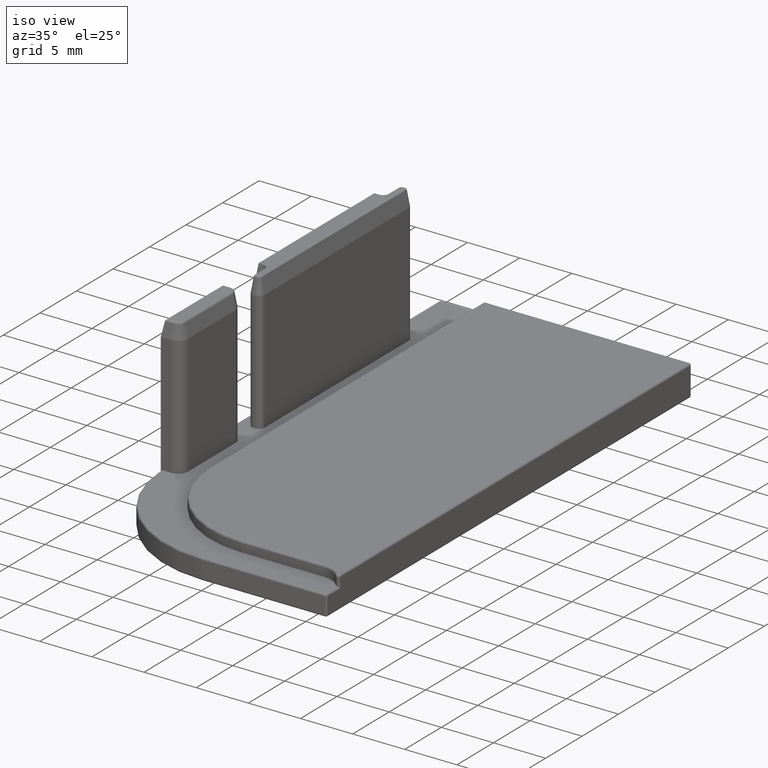
[diagram: clean part render]
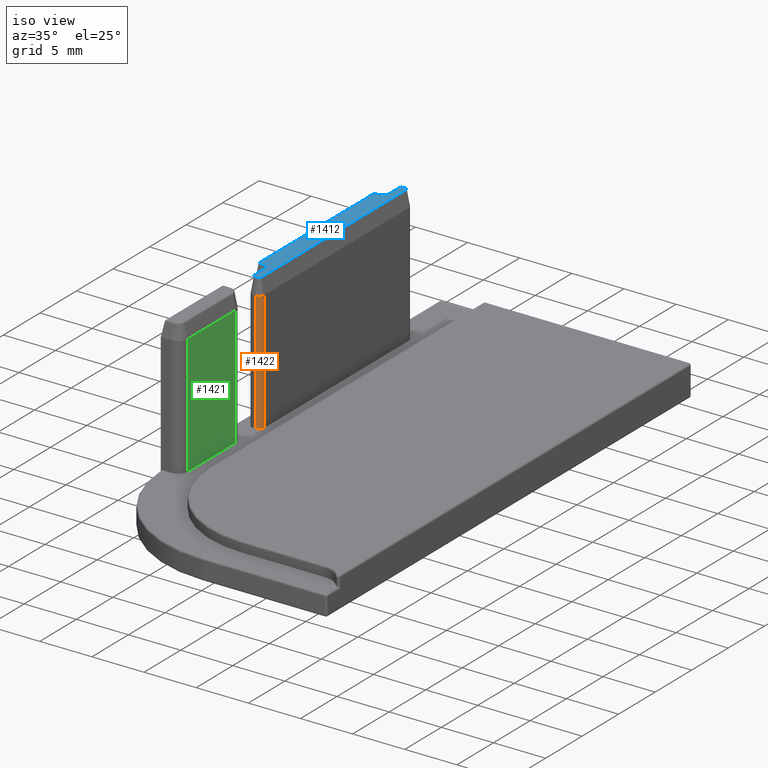
[diagram: same view with three faces highlighted in distinct colors, each labeled with its STEP entity id]
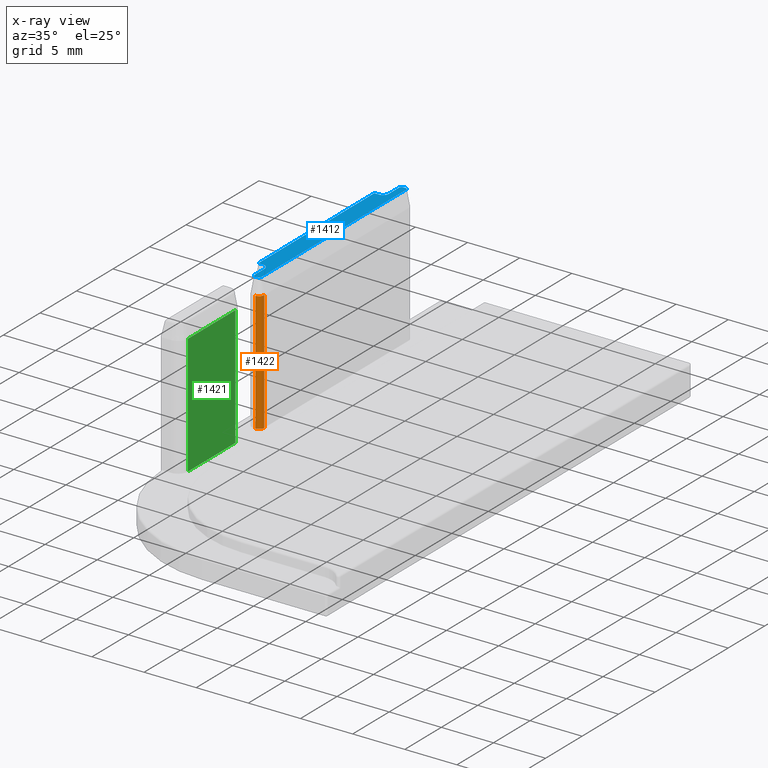
[diagram: x-ray of the same camera — body ghosted, the three highlighted faces saturated]
A machine part, iso view with three faces highlighted in distinct colors.
The next image is the same camera in x-ray (body ghosted, the three faces saturated) — at least one of them is partly hidden behind the body in this view.
Their STEP definitions:

[orange] entity #1422 — the highlighted cylindrical surface (edge-blend (fillet) strip) has radius 0.5 mm, axis along (0, 0, 1).
#157=FACE_OUTER_BOUND('',#246,.T.);
#246=EDGE_LOOP('',(#1268,#1269,#1270,#1271));
#360=LINE('',#2478,#482);
#372=LINE('',#2505,#494);
#482=VECTOR('',#2024,10.);
#494=VECTOR('',#2062,10.);
#553=CIRCLE('',#1553,0.5);
#561=CIRCLE('',#1567,0.5);
#648=VERTEX_POINT('',#2336);
#649=VERTEX_POINT('',#2338);
#664=VERTEX_POINT('',#2372);
#668=VERTEX_POINT('',#2383);
#810=EDGE_CURVE('',#648,#649,#553,.T.);
#831=EDGE_CURVE('',#668,#664,#561,.T.);
#879=EDGE_CURVE('',#648,#664,#360,.T.);
#893=EDGE_CURVE('',#649,#668,#372,.T.);
#1268=ORIENTED_EDGE('',*,*,#831,.F.);
#1269=ORIENTED_EDGE('',*,*,#893,.F.);
#1270=ORIENTED_EDGE('',*,*,#810,.F.);
#1271=ORIENTED_EDGE('',*,*,#879,.T.);
#1338=CYLINDRICAL_SURFACE('',#1614,0.5);
#1422=ADVANCED_FACE('',(#157),#1338,.T.);
#1553=AXIS2_PLACEMENT_3D('',#2339,#1879,#1880);
#1567=AXIS2_PLACEMENT_3D('',#2385,#1920,#1921);
#1614=AXIS2_PLACEMENT_3D('',#2504,#2060,#2061);
#1879=DIRECTION('center_axis',(0.,0.,-1.));
#1880=DIRECTION('ref_axis',(0.,-1.,0.));
#1920=DIRECTION('center_axis',(1.15797045492548E-28,-3.02068140384044E-31,
1.));
#1921=DIRECTION('ref_axis',(0.,-1.,0.));
#2024=DIRECTION('',(0.,0.,1.));
#2060=DIRECTION('center_axis',(0.,0.,1.));
#2061=DIRECTION('ref_axis',(0.,-1.,0.));
#2062=DIRECTION('',(0.,0.,1.));
#2336=CARTESIAN_POINT('',(-9.8,-2.4,2.));
#2338=CARTESIAN_POINT('',(-10.3,-2.9,2.));
#2339=CARTESIAN_POINT('Origin',(-10.3,-2.4,2.));
#2372=CARTESIAN_POINT('',(-9.8,-2.4,13.5));
#2383=CARTESIAN_POINT('',(-10.3,-2.9,13.5));
#2385=CARTESIAN_POINT('Origin',(-10.3,-2.4,13.5));
#2478=CARTESIAN_POINT('',(-9.8,-2.4,2.));
#2504=CARTESIAN_POINT('Origin',(-10.3,-2.4,2.));
#2505=CARTESIAN_POINT('',(-10.3,-2.9,2.));

[blue] entity #1412 — the highlighted planar face has unit normal (0, -0, 1).
#56=PLANE('',#1602);
#147=FACE_OUTER_BOUND('',#236,.T.);
#236=EDGE_LOOP('',(#1213,#1214,#1215,#1216,#1217,#1218,#1219,#1220,#1221,
#1222,#1223,#1224,#1225,#1226,#1227,#1228));
#321=LINE('',#2371,#443);
#327=LINE('',#2391,#449);
#331=LINE('',#2398,#453);
#335=LINE('',#2415,#457);
#339=LINE('',#2422,#461);
#343=LINE('',#2439,#465);
#347=LINE('',#2446,#469);
#351=LINE('',#2461,#473);
#443=VECTOR('',#1907,10.);
#449=VECTOR('',#1927,10.);
#453=VECTOR('',#1933,10.);
#457=VECTOR('',#1951,10.);
#461=VECTOR('',#1957,10.);
#465=VECTOR('',#1975,10.);
#469=VECTOR('',#1981,10.);
#473=VECTOR('',#1999,10.);
#559=CIRCLE('',#1564,0.235509528937302);
#562=CIRCLE('',#1568,0.235509528937302);
#563=CIRCLE('',#1572,0.235509528937303);
#566=CIRCLE('',#1576,0.235509528937303);
#567=CIRCLE('',#1580,0.564490471062697);
#570=CIRCLE('',#1584,0.564490471062697);
#571=CIRCLE('',#1588,0.0355095289373029);
#574=CIRCLE('',#1592,0.0355095289373031);
#662=VERTEX_POINT('',#2368);
#663=VERTEX_POINT('',#2370);
#666=VERTEX_POINT('',#2377);
#667=VERTEX_POINT('',#2382);
#670=VERTEX_POINT('',#2389);
#671=VERTEX_POINT('',#2394);
#674=VERTEX_POINT('',#2401);
#675=VERTEX_POINT('',#2406);
#678=VERTEX_POINT('',#2413);
#679=VERTEX_POINT('',#2418);
#682=VERTEX_POINT('',#2425);
#683=VERTEX_POINT('',#2430);
#686=VERTEX_POINT('',#2437);
#687=VERTEX_POINT('',#2442);
#690=VERTEX_POINT('',#2449);
#691=VERTEX_POINT('',#2454);
#824=EDGE_CURVE('',#662,#663,#321,.T.);
#828=EDGE_CURVE('',#666,#662,#559,.T.);
#832=EDGE_CURVE('',#663,#667,#562,.T.);
#834=EDGE_CURVE('',#670,#666,#327,.T.);
#838=EDGE_CURVE('',#667,#671,#331,.T.);
#840=EDGE_CURVE('',#674,#670,#563,.T.);
#844=EDGE_CURVE('',#671,#675,#566,.T.);
#846=EDGE_CURVE('',#678,#674,#335,.T.);
#850=EDGE_CURVE('',#675,#679,#339,.T.);
#852=EDGE_CURVE('',#682,#678,#567,.T.);
#856=EDGE_CURVE('',#679,#683,#570,.T.);
#858=EDGE_CURVE('',#686,#682,#343,.T.);
#862=EDGE_CURVE('',#683,#687,#347,.T.);
#864=EDGE_CURVE('',#690,#686,#571,.T.);
#868=EDGE_CURVE('',#687,#691,#574,.T.);
#870=EDGE_CURVE('',#691,#690,#351,.T.);
#1213=ORIENTED_EDGE('',*,*,#824,.F.);
#1214=ORIENTED_EDGE('',*,*,#828,.F.);
#1215=ORIENTED_EDGE('',*,*,#834,.F.);
#1216=ORIENTED_EDGE('',*,*,#840,.F.);
#1217=ORIENTED_EDGE('',*,*,#846,.F.);
#1218=ORIENTED_EDGE('',*,*,#852,.F.);
#1219=ORIENTED_EDGE('',*,*,#858,.F.);
#1220=ORIENTED_EDGE('',*,*,#864,.F.);
#1221=ORIENTED_EDGE('',*,*,#870,.F.);
#1222=ORIENTED_EDGE('',*,*,#868,.F.);
#1223=ORIENTED_EDGE('',*,*,#862,.F.);
#1224=ORIENTED_EDGE('',*,*,#856,.F.);
#1225=ORIENTED_EDGE('',*,*,#850,.F.);
#1226=ORIENTED_EDGE('',*,*,#844,.F.);
#1227=ORIENTED_EDGE('',*,*,#838,.F.);
#1228=ORIENTED_EDGE('',*,*,#832,.F.);
#1412=ADVANCED_FACE('',(#147),#56,.T.);
#1564=AXIS2_PLACEMENT_3D('',#2379,#1913,#1914);
#1568=AXIS2_PLACEMENT_3D('',#2386,#1922,#1923);
#1572=AXIS2_PLACEMENT_3D('',#2403,#1937,#1938);
#1576=AXIS2_PLACEMENT_3D('',#2410,#1946,#1947);
#1580=AXIS2_PLACEMENT_3D('',#2427,#1961,#1962);
#1584=AXIS2_PLACEMENT_3D('',#2434,#1970,#1971);
#1588=AXIS2_PLACEMENT_3D('',#2451,#1985,#1986);
#1592=AXIS2_PLACEMENT_3D('',#2458,#1994,#1995);
#1602=AXIS2_PLACEMENT_3D('',#2479,#2025,#2026);
#1907=DIRECTION('',(2.24287479722254E-16,-1.,-3.0206814038407E-31));
#1913=DIRECTION('center_axis',(-1.15797045492548E-28,3.02068140384044E-31,
-1.));
#1914=DIRECTION('ref_axis',(1.,3.49785981939007E-59,-1.15797045492548E-28));
#1922=DIRECTION('center_axis',(-1.15797045492548E-28,3.02068140384044E-31,
-1.));
#1923=DIRECTION('ref_axis',(-3.49785981939007E-59,-1.,-3.02068140384044E-31));
#1927=DIRECTION('',(1.,-3.3306690738755E-14,-1.15797045492548E-28));
#1933=DIRECTION('',(-1.,2.77555756156298E-15,1.15797045492548E-28));
#1937=DIRECTION('center_axis',(-1.15797045492548E-28,3.02068140384044E-31,
-1.));
#1938=DIRECTION('ref_axis',(3.49785981939007E-59,1.,3.02068140384044E-31));
#1946=DIRECTION('center_axis',(-1.15797045492548E-28,3.02068140384044E-31,
-1.));
#1947=DIRECTION('ref_axis',(-1.,-5.5511151231258E-16,1.15797045492548E-28));
#1951=DIRECTION('',(0.,1.,3.02068140384044E-31));
#1957=DIRECTION('',(-1.58603289232165E-15,1.,3.02068140384228E-31));
#1961=DIRECTION('center_axis',(1.15797045492548E-28,-3.02068140384044E-31,
1.));
#1962=DIRECTION('ref_axis',(-3.49785981939007E-59,-1.,-3.02068140384044E-31));
#1970=DIRECTION('center_axis',(1.15797045492548E-28,-3.02068140384044E-31,
1.));
#1971=DIRECTION('ref_axis',(1.,4.62592926927148E-16,-1.15797045492548E-28));
#1975=DIRECTION('',(1.,1.66533453693772E-14,-1.15797045492548E-28));
#1981=DIRECTION('',(-1.,-7.63278329429782E-15,1.15797045492548E-28));
#1985=DIRECTION('center_axis',(-1.15797045492548E-28,3.02068140384044E-31,
-1.));
#1986=DIRECTION('ref_axis',(3.49785981939007E-59,1.,3.02068140384044E-31));
#1994=DIRECTION('center_axis',(-1.15797045492548E-28,3.02068140384044E-31,
-1.));
#1995=DIRECTION('ref_axis',(-1.,-3.49785981939007E-59,1.15797045492548E-28));
#1999=DIRECTION('',(0.,1.,3.02068140384044E-31));
#2025=DIRECTION('center_axis',(1.15797045492548E-28,-3.02068140384044E-31,
1.));
#2026=DIRECTION('ref_axis',(1.,0.,-1.15797045492548E-28));
#2368=CARTESIAN_POINT('',(-10.0644904710627,17.4,15.));
#2370=CARTESIAN_POINT('',(-10.0644904710627,-2.4,15.));
#2371=CARTESIAN_POINT('',(-10.0644904710627,12.45,15.));
#2377=CARTESIAN_POINT('',(-10.3,17.6355095289373,15.));
#2379=CARTESIAN_POINT('Origin',(-10.3,17.4,15.));
#2382=CARTESIAN_POINT('',(-10.3,-2.6355095289373,15.));
#2386=CARTESIAN_POINT('Origin',(-10.3,-2.4,15.));
#2389=CARTESIAN_POINT('',(-10.5,17.6355095289373,15.));
#2391=CARTESIAN_POINT('',(-10.6520484650981,17.6355095289373,15.));
#2394=CARTESIAN_POINT('',(-10.5,-2.6355095289373,15.));
#2398=CARTESIAN_POINT('',(-10.5520484650982,-2.6355095289373,15.));
#2401=CARTESIAN_POINT('',(-10.7355095289373,17.4,15.));
#2403=CARTESIAN_POINT('Origin',(-10.5,17.4,15.));
#2406=CARTESIAN_POINT('',(-10.7355095289373,-2.4,15.));
#2410=CARTESIAN_POINT('Origin',(-10.5,-2.4,15.));
#2413=CARTESIAN_POINT('',(-10.7355095289373,16.,15.));
#2415=CARTESIAN_POINT('',(-10.7355095289373,11.75,15.));
#2418=CARTESIAN_POINT('',(-10.7355095289373,-0.999999999999999,15.));
#2422=CARTESIAN_POINT('',(-10.7355095289373,2.55,15.));
#2425=CARTESIAN_POINT('',(-11.3,15.4355095289373,15.));
#2427=CARTESIAN_POINT('Origin',(-11.3,16.,15.));
#2430=CARTESIAN_POINT('',(-11.3,-0.435509528937302,15.));
#2434=CARTESIAN_POINT('Origin',(-11.3,-1.,15.));
#2437=CARTESIAN_POINT('',(-11.7,15.4355095289373,15.));
#2439=CARTESIAN_POINT('',(-11.2520484650983,15.4355095289373,15.));
#2442=CARTESIAN_POINT('',(-11.7,-0.435509528937306,15.));
#2446=CARTESIAN_POINT('',(-11.0520484650982,-0.435509528937301,15.));
#2449=CARTESIAN_POINT('',(-11.7355095289373,15.4,15.));
#2451=CARTESIAN_POINT('Origin',(-11.7,15.4,15.));
#2454=CARTESIAN_POINT('',(-11.7355095289373,-0.400000000000004,15.));
#2458=CARTESIAN_POINT('Origin',(-11.7,-0.400000000000004,15.));
#2461=CARTESIAN_POINT('',(-11.7355095289373,-2.75,15.));
#2479=CARTESIAN_POINT('Origin',(-10.8040969301965,7.5,15.));

[green] entity #1421 — the highlighted planar face has unit normal (1, 0, 0).
#60=PLANE('',#1613);
#156=FACE_OUTER_BOUND('',#245,.T.);
#245=EDGE_LOOP('',(#1264,#1265,#1266,#1267));
#318=LINE('',#2359,#440);
#362=LINE('',#2484,#484);
#365=LINE('',#2492,#487);
#371=LINE('',#2502,#493);
#440=VECTOR('',#1894,10.);
#484=VECTOR('',#2030,10.);
#487=VECTOR('',#2043,10.);
#493=VECTOR('',#2057,10.);
#658=VERTEX_POINT('',#2356);
#659=VERTEX_POINT('',#2358);
#693=VERTEX_POINT('',#2481);
#694=VERTEX_POINT('',#2483);
#820=EDGE_CURVE('',#658,#659,#318,.T.);
#881=EDGE_CURVE('',#693,#694,#362,.T.);
#886=EDGE_CURVE('',#659,#693,#365,.T.);
#892=EDGE_CURVE('',#658,#694,#371,.T.);
#1264=ORIENTED_EDGE('',*,*,#881,.F.);
#1265=ORIENTED_EDGE('',*,*,#886,.F.);
#1266=ORIENTED_EDGE('',*,*,#820,.F.);
#1267=ORIENTED_EDGE('',*,*,#892,.T.);
#1421=ADVANCED_FACE('',(#156),#60,.T.);
#1613=AXIS2_PLACEMENT_3D('',#2503,#2058,#2059);
#1894=DIRECTION('',(3.41607084500048E-16,-1.,0.));
#2030=DIRECTION('',(-3.41607084500048E-16,1.,-1.4228917991838E-30));
#2043=DIRECTION('',(0.,0.,1.));
#2057=DIRECTION('',(0.,0.,1.));
#2058=DIRECTION('center_axis',(1.,3.41607084500048E-16,0.));
#2059=DIRECTION('ref_axis',(0.,0.,-1.));
#2356=CARTESIAN_POINT('',(-10.05,-6.,2.));
#2358=CARTESIAN_POINT('',(-10.05,-12.5,2.));
#2359=CARTESIAN_POINT('',(-10.05,-2.50285323946665,2.));
#2481=CARTESIAN_POINT('',(-10.05,-12.5,13.5));
#2483=CARTESIAN_POINT('',(-10.05,-6.,13.5));
#2484=CARTESIAN_POINT('',(-10.05,-7.62411905157084,13.5));
#2492=CARTESIAN_POINT('',(-10.05,-12.5,2.));
#2502=CARTESIAN_POINT('',(-10.05,-6.,2.));
#2503=CARTESIAN_POINT('Origin',(-10.05,-6.,2.));